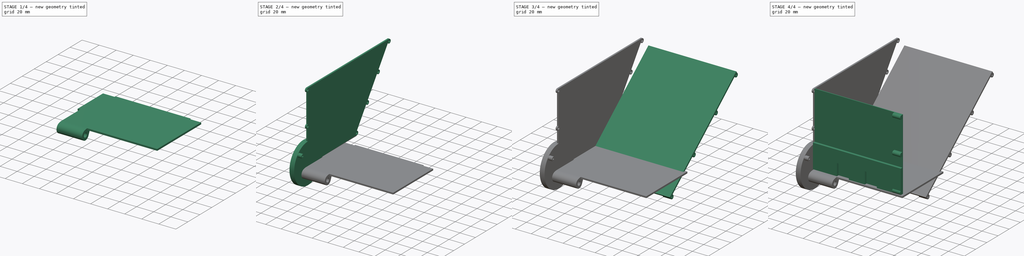
[diagram: build sequence overview — one tinted view per stage of 4, left to right]
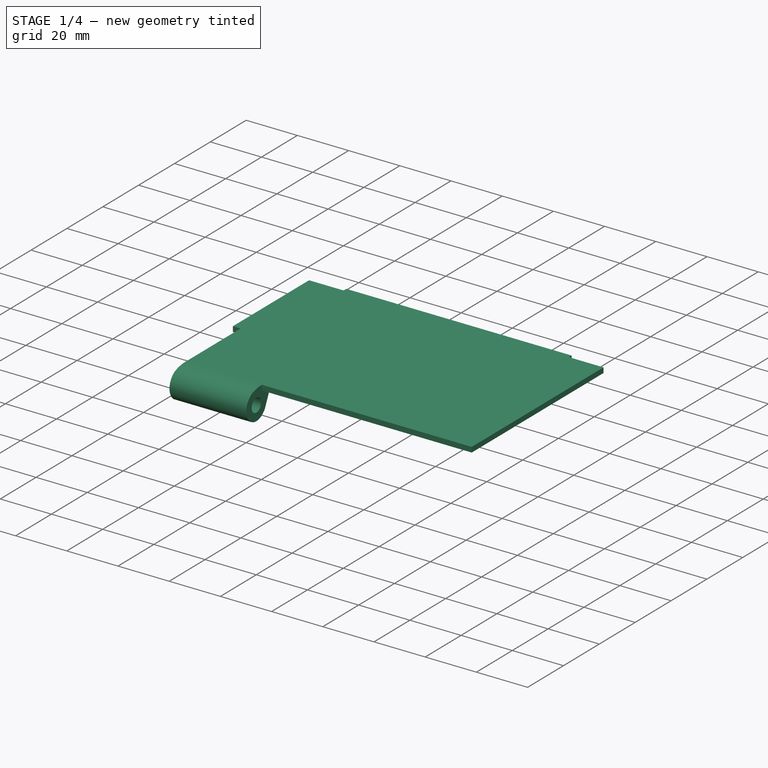
[diagram: stage 1 of 4 — iso view after this stage's code; geometry added in this stage tinted green]
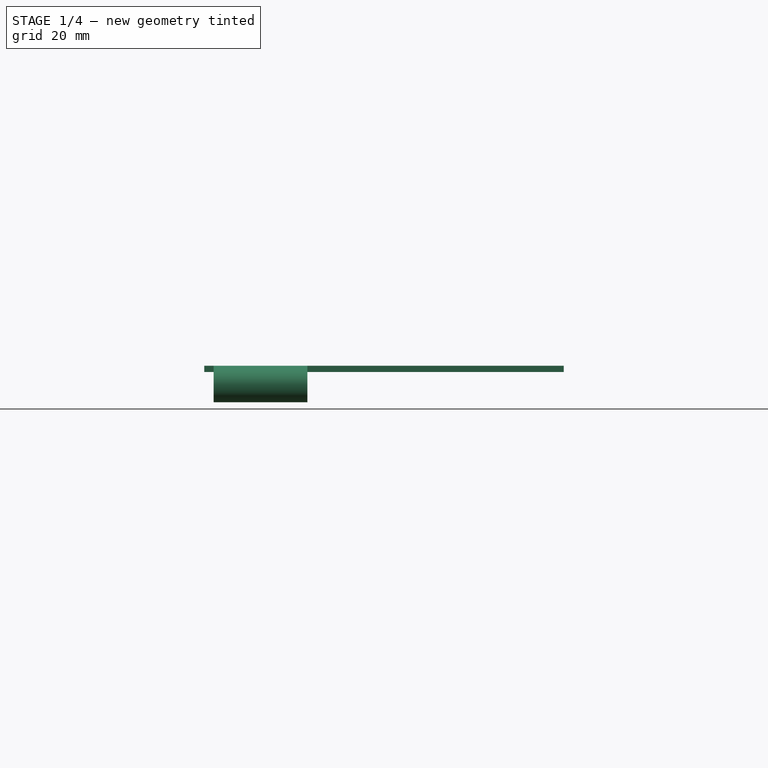
[diagram: stage 1 of 4 — front view after this stage's code; geometry added in this stage tinted green]
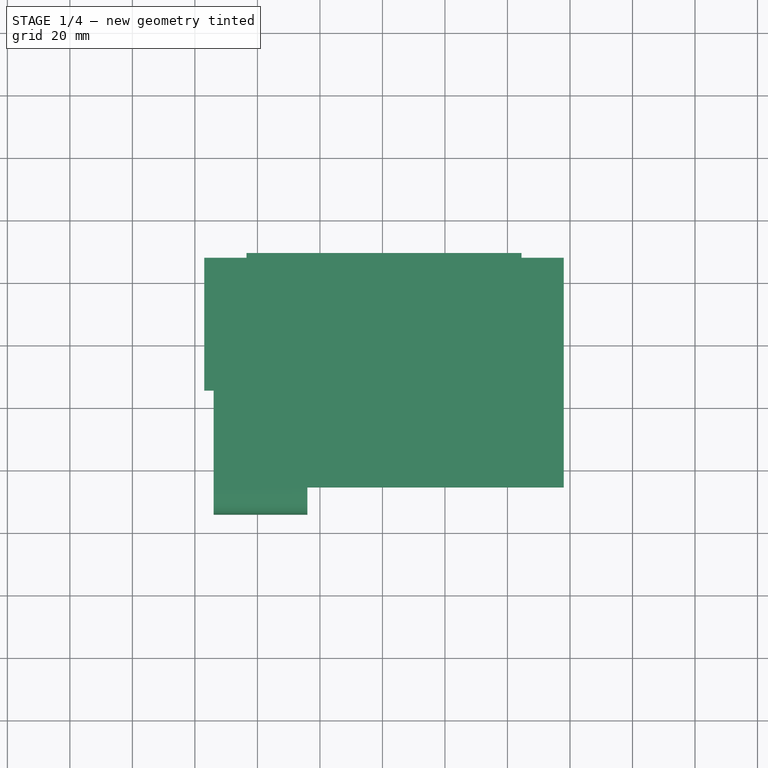
[diagram: stage 1 of 4 — top view after this stage's code; geometry added in this stage tinted green]
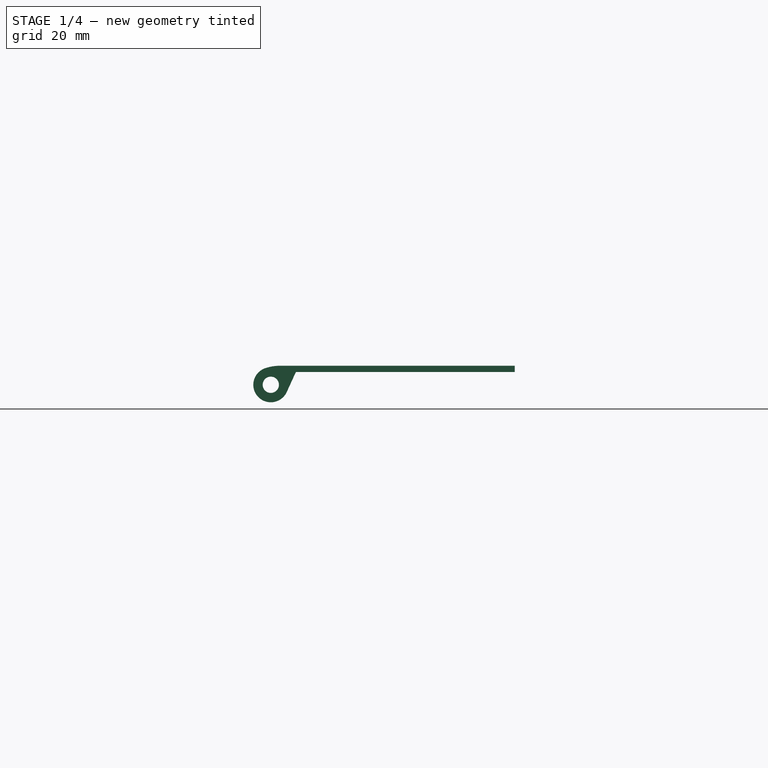
[diagram: stage 1 of 4 — right view after this stage's code; geometry added in this stage tinted green]
FCSTD DOCUMENT  (FreeCAD 0.18.4R)
Label: bunkerV3
License: All rights reserved
LicenseURL: http://en.wikipedia.org/wiki/All_rights_reserved
objects: Sketcher::SketchObject×18, PartDesign::Pad×12, PartDesign::Body×5, PartDesign::ShapeBinder×5, PartDesign::Pocket×3, PartDesign::Plane×3, PartDesign::Mirrored×2, PartDesign::Line×2, Spreadsheet::Sheet×1, PartDesign::FeatureBase×1, PartDesign::Revolution×1, App::Part×1
note: 68 computed .brp shape members not serialized (recipe doc carries the construction recipe); baked Part::Feature solids carry a one-line shape summary decoded from their .brp

FEATURE [PartDesign::Body] Body005  label="Unnamed"
FEATURE [PartDesign::ShapeBinder] CopyPad004001  label="Unnamed"
  TraceSupport = false
FEATURE [Sketcher::SketchObject] Sketch008  label="Sketch011"
  ExternalGeometry = -> [Mirrored001]
  MapMode = 5
  Placement = pos=(-55,-3.6e-15,-45) rot=(-0.707107,0.707107,0;3.14159rad)
  Support = -> [CopyPad004001]
  sketch-geometry (5):
    g0: LineSegment StartX=88.1546 StartY=-36.5099 StartZ=0 EndX=88.1546 EndY=-28.5099 EndZ=0
    g1: LineSegment StartX=102.155 StartY=-44.5099 StartZ=0 EndX=102.155 EndY=-36.5099 EndZ=0
    g2: LineSegment StartX=-69.5 StartY=-99.5 StartZ=0 EndX=-68 EndY=-99.5 EndZ=0
    g3: LineSegment StartX=-68 StartY=-113 StartZ=0 EndX=5.5 EndY=-113 EndZ=0
    g4: LineSegment StartX=5.5 StartY=-21 StartZ=0 EndX=5.5 EndY=-1 EndZ=0
  constraints (12):
    c: Horizontal(g0)
    c: Vertical(g1)
    c: Coincident(g2,g0)
    c: Coincident(g2,g1)
    c: Coincident(g3,g4)
    c: Horizontal(g4)
    c: Vertical(g3)
    c: Distance(g3) = 8
    c: Distance(g4) = 14
    c: Distance(g4,g1) = 8
    c: Coincident(g0,g3)
    c: Coincident(g1,g4)
FEATURE [PartDesign::Body] Body002  label="Back"
  Group = -> [DatumPlane002,CopyPad004,Sketch006,ShapeBinder,Pad005,Sketch007,Pad006,Mirrored001,Sketch008]
  Origin = -> Origin003
  Tip = -> Mirrored001
FEATURE [Sketcher::SketchObject] Sketch011  label="Unnamed"
FEATURE [PartDesign::Pad] Pad008
  Length = 2
  Length2 = 100
  Placement = pos=(-55,0,0) rot=(0.707107,0,-0.707107;3.14159rad)
  Profile = -> Sketch011
  Type = 0
FEATURE [PartDesign::ShapeBinder] ShapeBinder001
  Placement = pos=(-55,0,0) rot=(0.707107,0,-0.707107;3.14159rad)
  Support = -> [Pad004]
  TraceSupport = false
FEATURE [Sketcher::SketchObject] Sketch015
  ExternalGeometry = -> [Pad008]
  MapMode = 5
  Placement = pos=(-54,0,0) rot=(0.707107,0,-0.707107;3.14159rad)
  constraints (11):
    c: Coincident(g2,g0)
    c: Coincident(g2,g1)
    c: Tangent(g1,g2)
    c: PointOnObject(g3,g2)
    c: Perpendicular(g2,g3)
    c: Distance(g3) = 3
    c: Coincident(g4,g2)
    c: Tangent(g4,g2)
    c: Coincident(g5,g4)
    c: Coincident(g6,g5)
    c: Coincident(g6,g1)
FEATURE [PartDesign::Pad] Pad009
  BaseFeature = -> Pad008
  Length = 30
  Length2 = 100
  Placement = pos=(-55,0,0) rot=(0.707107,0,-0.707107;3.14159rad)
  Profile = -> Sketch015
  Reversed = true
  Type = 0
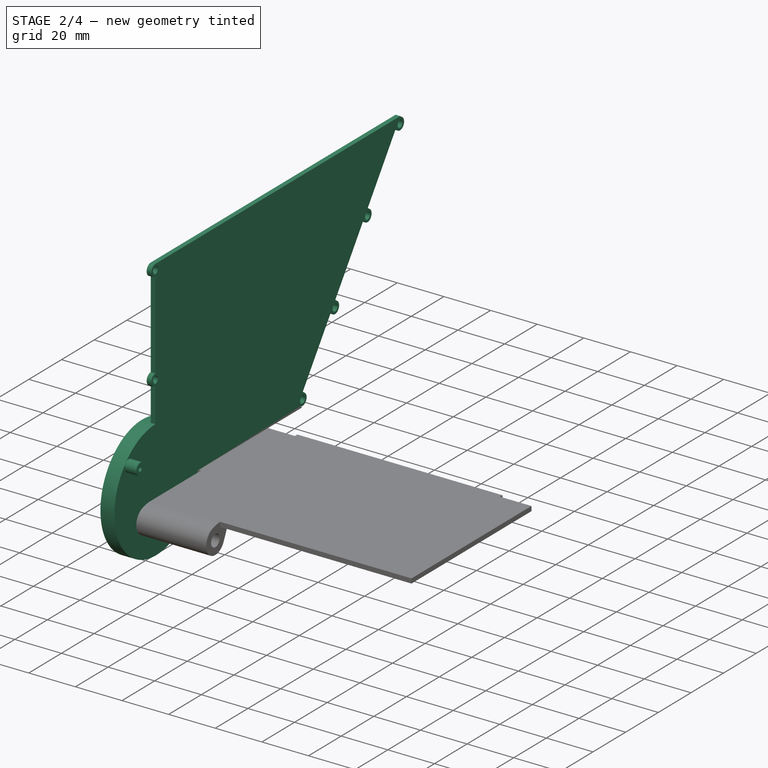
[diagram: stage 2 of 4 — iso view after this stage's code; geometry added in this stage tinted green]
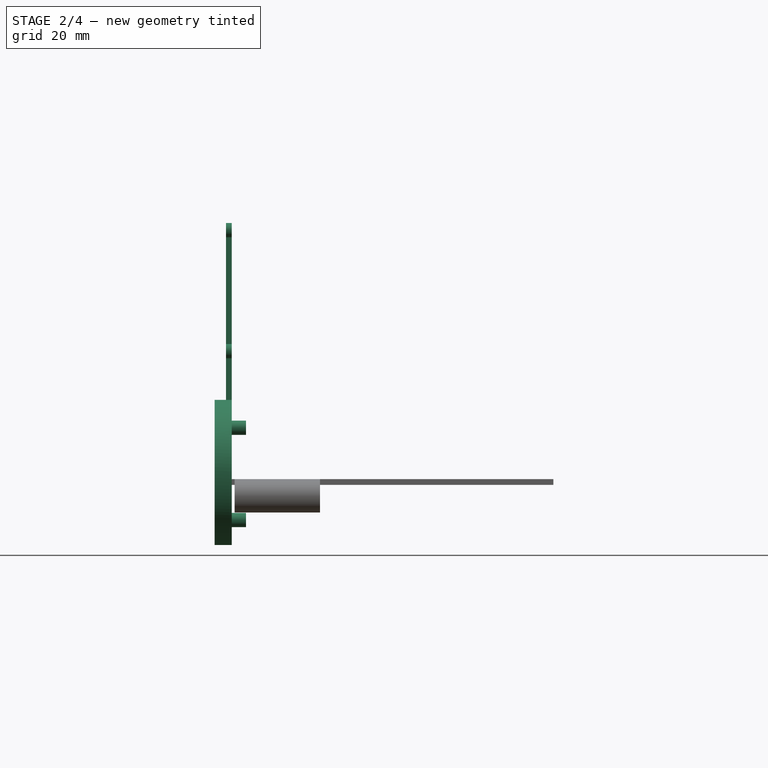
[diagram: stage 2 of 4 — front view after this stage's code; geometry added in this stage tinted green]
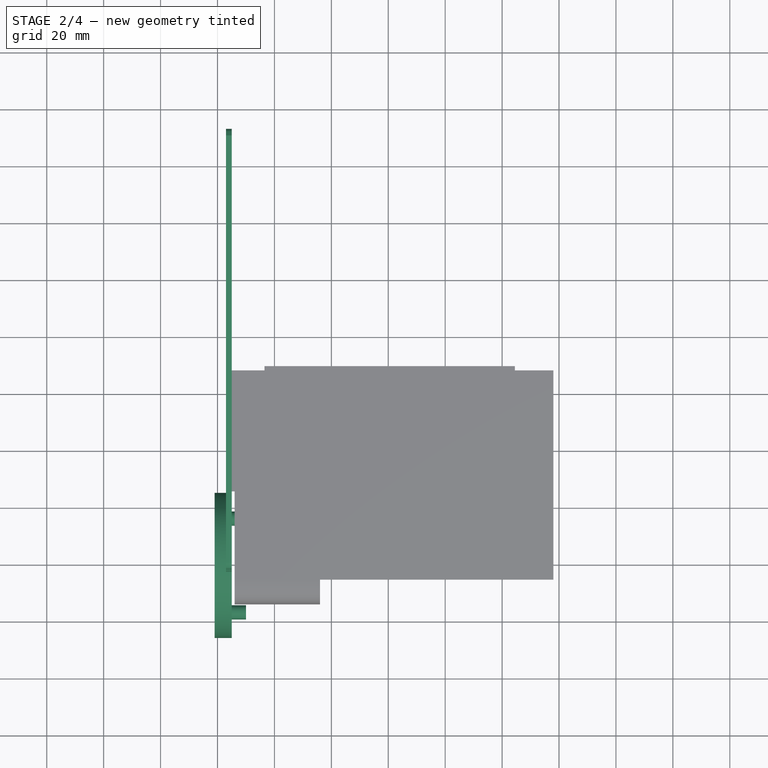
[diagram: stage 2 of 4 — top view after this stage's code; geometry added in this stage tinted green]
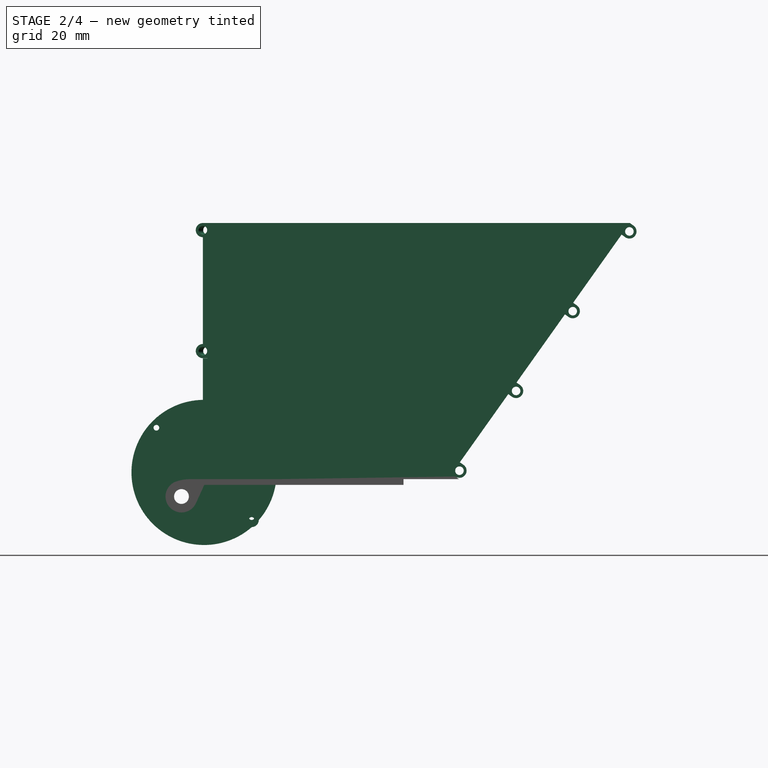
[diagram: stage 2 of 4 — right view after this stage's code; geometry added in this stage tinted green]
FEATURE [PartDesign::Pocket] Pocket  label="Unnamed"
  Length = 100
  Length2 = 100
  Type = 0
FEATURE [PartDesign::Plane] DatumPlane  label="Unnamed"
  Length = 24
  ResizeMode = 0
  Width = 24
FEATURE [PartDesign::Mirrored] Mirrored  label="Unnamed"
FEATURE [PartDesign::Plane] DatumPlane001  label="Unnamed"
  Length = 73.7938
  ResizeMode = 0
  Width = 27.2938
FEATURE [Sketcher::SketchObject] Sketch003  label="Sketch004"
  ExternalGeometry = -> [Pad002]
  MapMode = 5
  Support = -> [DatumPlane001]
  expr: Constraints[5] = <<D>>.fixture_hole_end_diameter
  constraints (6):
    c: Coincident(g0,g-5)
    c: Coincident(g1,g-4)
    c: Coincident(g2,g-3)
    c: Equal(g2,g1)
    c: Equal(g1,g0)
    c: Diameter(g2) = 2
FEATURE [PartDesign::Body] Body  label="Front"
  Group = -> [Sketch,Pad,Sketch001,Pad001,Sketch002,Pad002,Sketch003,Pocket,DatumPlane,Mirrored]
  Origin = -> Origin001
  Tip = -> Mirrored
FEATURE [PartDesign::ShapeBinder] CopyMirrored  label="Unnamed"
  TraceSupport = false
FEATURE [Sketcher::SketchObject] Sketch004  label="Unnamed"
FEATURE [PartDesign::Pad] Pad003
  Length = 2
  Length2 = 100
  Placement = pos=(-55,0,0) rot=(0.707107,0,-0.707107;3.14159rad)
  Profile = -> Sketch004
  Type = 0
FEATURE [Sketcher::SketchObject] Sketch005
  MapMode = 5
  Placement = pos=(-57,-3e-16,-3e-16) rot=(0.707107,0,-0.707107;3.14159rad)
  Support = -> [Pad003]
  expr: Constraints[16] = Sketch004.Constraints[19]
  expr: Constraints[75] = 5
  expr: Constraints[17] = Sketch004.Constraints[20]
  expr: Constraints[74] = 3.5
  expr: Constraints[3] = Sketch004.Constraints[4]
  expr: Constraints[2] = Sketch004.Constraints[3]
  expr: Constraints[77] = Sketch004.Constraints[81]
  expr: Constraints[61] = Sketch004.Constraints[63]
  expr: Constraints[19] = Sketch004.Constraints[21]
  expr: Constraints[79] = Sketch004.Constraints[84]
  expr: Constraints[28] = Sketch004.Constraints[30]
  expr: Constraints[30] = Sketch004.Constraints[32]
  expr: Constraints[64] = Sketch004.Constraints[67]
  expr: Constraints[18] = Sketch004.Constraints[21]
  constraints (89):
    c: Horizontal(g0)
    c: Vertical(g1)
    c: DistanceY(g-1,g1) = 1
    c: Distance(g1,g2) = 90
    c: PointOnObject(g2,g-2)
    c: Horizontal(g2)
    c: Coincident(g3,g2)
    c: Coincident(g3,g1)
    c: Equal(g2,g3)
    c: Coincident(g5,g4)
    c: Coincident(g6,g5)
    c: Vertical(g6)
    c: Coincident(g7,g5)
    c: Vertical(g7)
    c: Tangent(g7,g5)
    c: Tangent(g6,g5)
    c: Diameter(g5) = 5
    c: Diameter(g4) = 3
    c: Distance(g4,g0) = 5.2
    c: Diameter(g8) = 5.2
    c: Coincident(g11,g8)
    c: Coincident(g12,g11)
    c: Coincident(g12,g10)
    c: Coincident(g13,g11)
    c: Coincident(g13,g9)
    c: Equal(g12,g13)
    c: Parallel(g12,g13)
    c: Perpendicular(g12,g11)
    c: Distance(g12) = 22.95
    c: Coincident(g14,g11)
    c: Distance(g11) = 11.6
    c: Coincident(g16,g15)
    c: Coincident(g17,g16)
    c: Vertical(g17)
    c: Coincident(g18,g16)
    c: Vertical(g18)
    c: Tangent(g18,g16)
    c: Equal(g5,g16) = 5
    c: Equal(g4,g15) = 3
    c: Coincident(g20,g19)
    c: Coincident(g21,g20)
    c: Vertical(g21)
    c: Coincident(g22,g20)
    c: Vertical(g22)
    c: Tangent(g22,g20)
    c: Tangent(g21,g20)
    c: Equal(g5,g20) = 5
    c: Equal(g4,g19) = 3
    c: PointOnObject(g18,g0)
    c: PointOnObject(g21,g0)
    c: Coincident(g22,g1)
    c: Horizontal(g19,g15)
    c: Horizontal(g15,g4)
    c: Coincident(g0,g7)
    c: Coincident(g0,g17)
    c: Tangent(g0,g23)
    c: PointOnObject(g23,g18)
    c: PointOnObject(g23,g21)
    c: Equal(g23,g0)
    c: Horizontal(g0,g2)
    c: Horizontal(g3)
    c: Distance(g1) = 90
    c: Coincident(g24,g1)
    c: Vertical(g24)
    c: Distance(g24) = 3
    c: Coincident(g25,g24)
    c: PointOnObject(g25,g8)
    c: Perpendicular(g8,g25)
    c: Coincident(g26,g24)
    c: Vertical(g26)
    c: PointOnObject(g27,g26)
    c: PointOnObject(g27,g8)
    c: Horizontal(g27)
    c: Perpendicular(g8,g27)
    c: Distance(g27) = 3.5
    c: Distance(g25) = 5
    c: Diameter(g14) = 51
    c: Diameter(g10) = 2
    c: Equal(g10,g9)
    c: Distance(g26) = 3
    c: Horizontal(g28)
    c: Distance(g28,g3) = 3
    c: Coincident(g29,g10)
    c: PointOnObject(g29,g28)
    c: Vertical(g29)
    c: Coincident(g30,g9)
    c: PointOnObject(g30,g1)
    c: Horizontal(g30)
    c: Equal(g30,g29)
FEATURE [PartDesign::Pad] Pad004
  BaseFeature = -> Pad003
  Length = 4
  Length2 = 2
  Placement = pos=(-55,0,0) rot=(0.707107,0,-0.707107;3.14159rad)
  Profile = -> Sketch005
  Type = 4
FEATURE [PartDesign::Pocket] Pocket003  label="Unnamed"
  Length = 100
  Length2 = 100
  Type = 0
FEATURE [Sketcher::SketchObject] Sketch016  label="Sketch017"
  MapMode = 5
  Placement = pos=(-55,0,0) rot=(0,1,0;1.5708rad)
  Support = -> [Pocket003]
  sketch-geometry (4):
    g0: LineSegment StartX=182.35 StartY=1.5 StartZ=0 EndX=182.35 EndY=30.5143 EndZ=0
    g1: LineSegment StartX=-29.8571 StartY=30.5143 StartZ=0 EndX=-29.8571 EndY=1.5 EndZ=0
    g2: Circle CenterX=59.3381 CenterY=16.1421 CenterZ=0 NormalX=0 NormalY=0 NormalZ=1 AngleXU=0 Radius=2.5
    g3: Circle CenterX=26.9394 CenterY=-17.3381 CenterZ=0 NormalX=0 NormalY=0 NormalZ=1 AngleXU=0 Radius=2.5
  constraints (9):
    c: Coincident(g0,g1)
    c: Coincident(g1,g2)
    c: Coincident(g2,g3)
    c: Coincident(g3,g0)
    c: Horizontal(g0)
    c: Horizontal(g2)
    c: Vertical(g1)
    c: Vertical(g3)
    c: Distance(g0,g-1) = 1.5
FEATURE [Sketcher::SketchObject] Sketch017  label="Unnamed"
FEATURE [PartDesign::Pad] Pad010
  BaseFeature = -> Pocket003
  Length = 5
  Length2 = 100
  Placement = pos=(-55,0,0) rot=(0.707107,0,-0.707107;3.14159rad)
  Profile = -> Sketch017
  Type = 0
FEATURE [PartDesign::Pocket] Pocket004  label="Unnamed"
  Length = 100
  Length2 = 100
  Type = 0
FEATURE [Sketcher::SketchObject] Sketch019  label="Unnamed"
FEATURE [PartDesign::Pad] Pad011  label="Unnamed"
  Length = 100
  Length2 = 100
  Type = 0
FEATURE [Sketcher::SketchObject] Sketch018  label="Sketch021"
  ExternalGeometry = -> [Pad009]
  MapMode = 5
  Placement = pos=(-55,-4.68e-14,-37) rot=(0,0,1;1.5708rad)
  Support = -> [Pad011]
  sketch-geometry (8):
    g0: LineSegment StartX=51.1 StartY=8.53321 StartZ=0 EndX=59.8678 EndY=-11.8476 EndZ=0
    g1: ArcOfCircle CenterX=51.1 CenterY=8.53321 CenterZ=0 NormalX=0 NormalY=0 NormalZ=1 AngleXU=0 Radius=27.4423 StartAngle=4.56242 EndAngle=5.11535
    g2: ArcOfCircle CenterX=51.1 CenterY=8.53321 CenterZ=0 NormalX=0 NormalY=0 NormalZ=1 AngleXU=0 Radius=27.4423 StartAngle=4.48823 EndAngle=4.56242
    g3: LineSegment StartX=47 StartY=-13.2714 StartZ=0 EndX=47 EndY=-18.6011 EndZ=0
    g4: LineSegment StartX=45 StartY=-59.7924 StartZ=0 EndX=45 EndY=-29.7924 EndZ=0
    g5: LineSegment StartX=37 StartY=-29.7924 StartZ=0 EndX=37 EndY=-59.7924 EndZ=0
    g6: LineSegment StartX=63.0705 StartY=8.5 StartZ=0 EndX=60.7611 EndY=12.5 EndZ=0
    g7: LineSegment StartX=56.1423 StartY=12.5 StartZ=0 EndX=53.8329 EndY=8.5 EndZ=0
  constraints (18):
    c: Coincident(g0,g-3)
    c: Coincident(g1,g0)
    c: Coincident(g2,g0)
    c: Coincident(g2,g1)
    c: Coincident(g3,g0)
    c: Coincident(g3,g0)
    c: PointOnObject(g2,g-4)
    c: PointOnObject(g3,g-4)
    c: Coincident(g4,g0)
    c: Coincident(g4,g2)
    c: PointOnObject(g4,g-5)
    c: Coincident(g5,g4)
    c: Coincident(g5,g3)
    c: PointOnObject(g5,g-5)
    c: Coincident(g6,g4)
    c: Coincident(g6,g5)
    c: Coincident(g7,g4)
    c: Coincident(g7,g5)
FEATURE [Sketcher::SketchObject] Sketch021  label="Unnamed"
FEATURE [PartDesign::Line] DatumLine
  AttacherType = Attacher::AttachEngineLine
  MapMode = 19
  Placement = pos=(-56.5,0.6,3.1e-15) rot=(0,1,0;1.5708rad)
  Support = -> [Pad011]
FEATURE [Sketcher::SketchObject] Sketch022  label="Unnamed"
FEATURE [PartDesign::Line] DatumLine001  label="Unnamed"
  AttacherType = Attacher::AttachEngineLine
FEATURE [PartDesign::Revolution] Revolution  label="Unnamed"
  Angle = 360
  Axis = (0,1,0)
  Base = (0,0,0)
FEATURE [Sketcher::SketchObject] Sketch023  label="Unnamed"
FEATURE [PartDesign::Pad] Pad012  label="Unnamed"
  Length = 100
  Length2 = 100
  Type = 0
FEATURE [PartDesign::Body] Body001  label="Right"
  Group = -> [DatumPlane001,CopyMirrored,Sketch004,Pad003,Sketch005,Pad004,Sketch016,Pocket003,Sketch017,Pad010,Sketch019,Pad011,Sketch021,DatumLine,Sketch022,DatumLine001,Revolution,Sketch023,Pad012]
  Origin = -> Origin002
  Tip = -> Pad012
FEATURE [App::Part] Part  label="bunker"
  Group = -> [Body,Body001,Body002,Spreadsheet,Body004,Body005]
  Origin = -> Origin
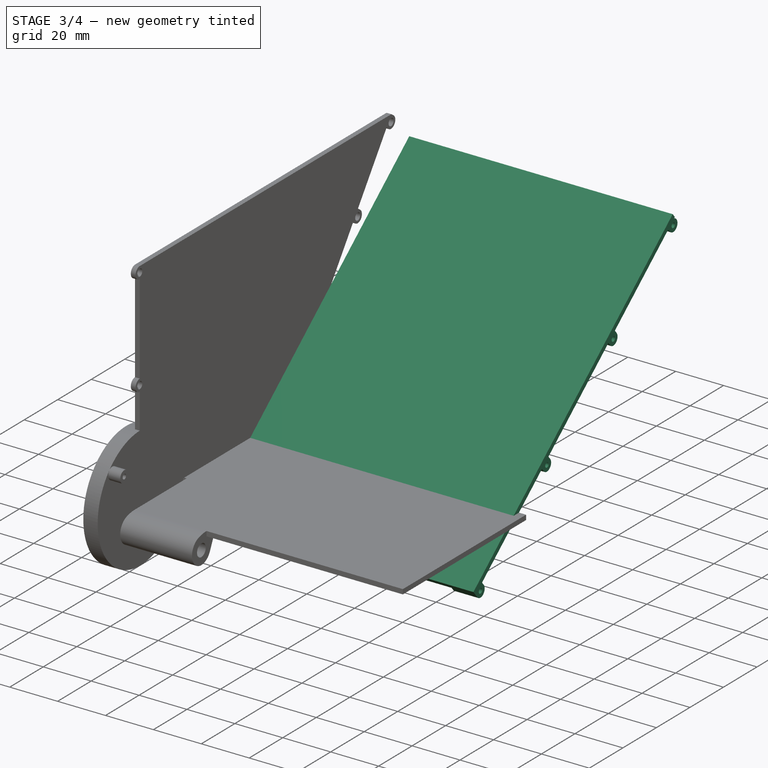
[diagram: stage 3 of 4 — iso view after this stage's code; geometry added in this stage tinted green]
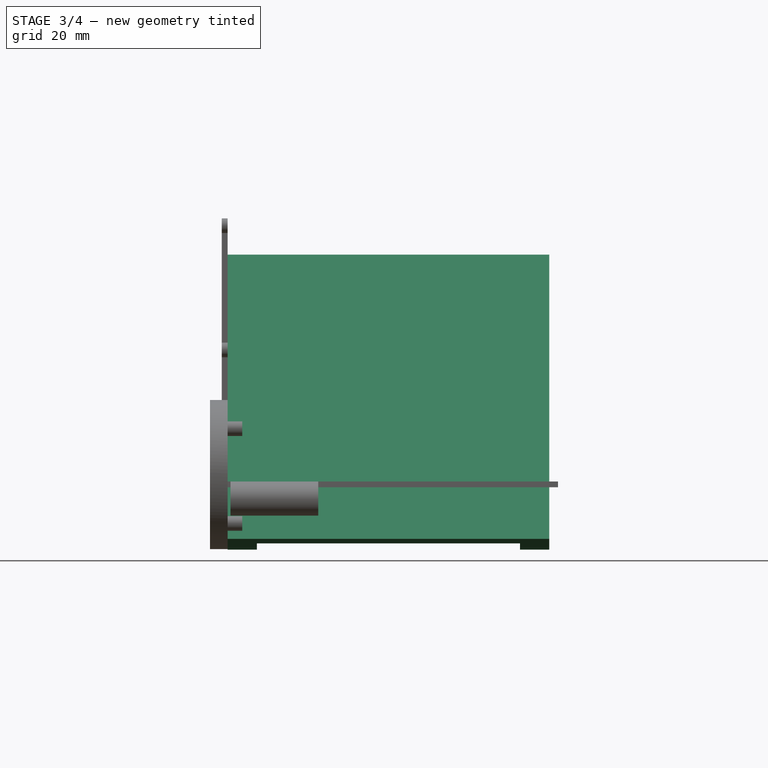
[diagram: stage 3 of 4 — front view after this stage's code; geometry added in this stage tinted green]
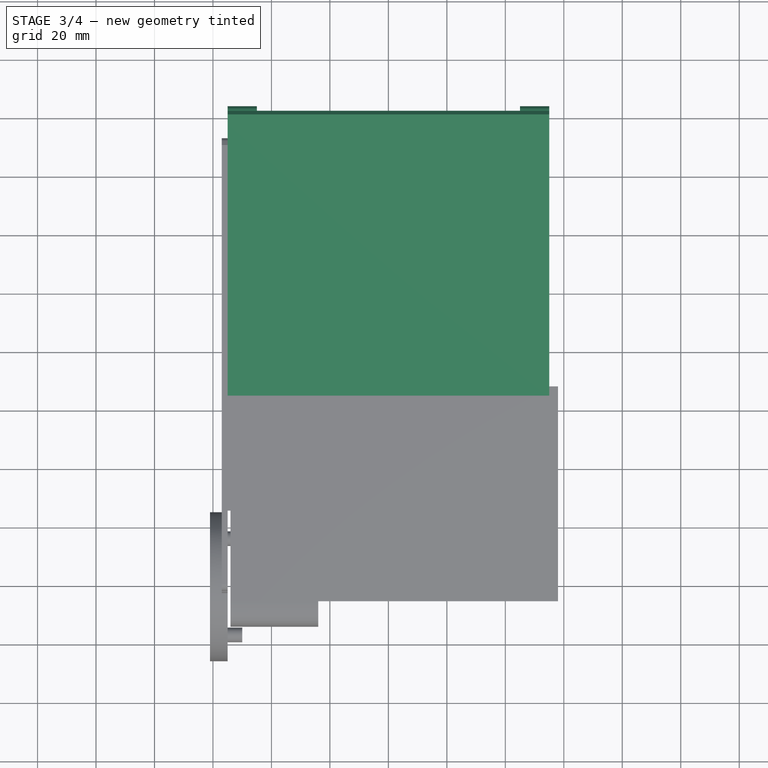
[diagram: stage 3 of 4 — top view after this stage's code; geometry added in this stage tinted green]
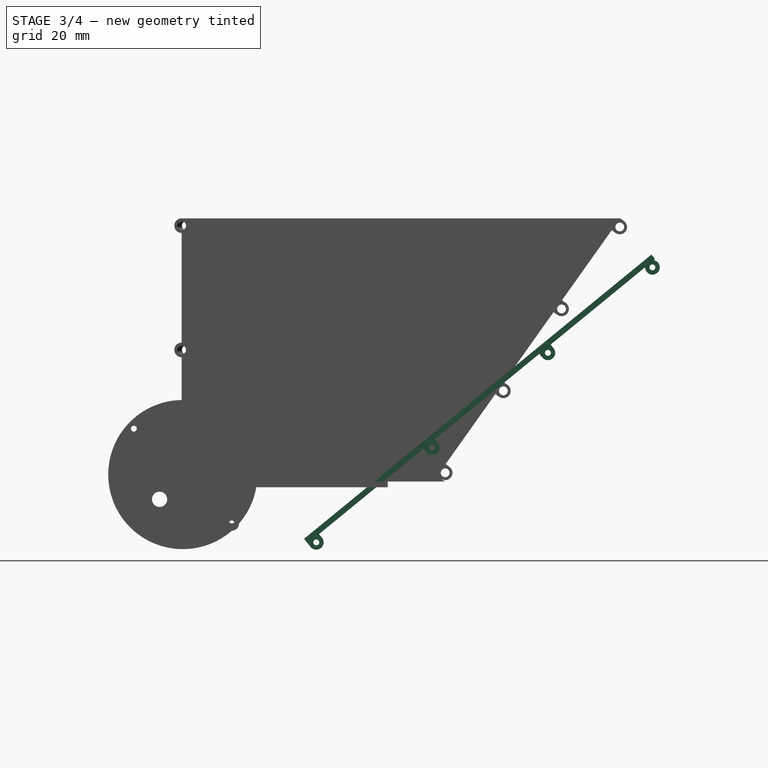
[diagram: stage 3 of 4 — right view after this stage's code; geometry added in this stage tinted green]
FEATURE [PartDesign::FeatureBase] Clone
  BaseFeature = -> Pad003
  Placement = pos=(-55,0,0) rot=(0.707107,0,-0.707107;3.14159rad)
FEATURE [PartDesign::Body] Body004  label="Left"
  BaseFeature = -> Pad003
  Group = -> [Clone]
  Origin = -> Origin005
  Placement = pos=(111,0,0) rot=(0,0,1;0rad)
  Tip = -> Clone
FEATURE [PartDesign::ShapeBinder] CopyPad004
  Placement = pos=(-55,0,0) rot=(0.707107,0,-0.707107;3.14159rad)
  TraceSupport = false
FEATURE [PartDesign::Plane] DatumPlane002
  Length = 228.716
  MapMode = 5
  Placement = pos=(-55,49.3218,-60.2822) rot=(0.685604,-0.685604,-0.244735;3.62163rad)
  ResizeMode = 0
  Support = -> [CopyPad004]
  Width = 141.848
FEATURE [PartDesign::ShapeBinder] ShapeBinder  label="Unnamed"
  TraceSupport = false
FEATURE [PartDesign::Pad] Pad005  label="Unnamed"
  Length = 100
  Length2 = 100
  Type = 0
FEATURE [Sketcher::SketchObject] Sketch006  label="Sketch007"
  MapMode = 5
  Placement = pos=(-55,49.3218,-60.2822) rot=(-0.393654,-0.830706,0.393654;1.75522rad)
  Support = -> [Pad005]
FEATURE [Sketcher::SketchObject] Sketch007  label="Unnamed"
FEATURE [PartDesign::Pad] Pad006
  BaseFeature = -> Pad005
  Length = 10
  Length2 = 100
  Placement = pos=(-55,49.3218,-60.2822) rot=(0.685604,-0.685604,-0.244735;3.62163rad)
  Profile = -> Sketch007
  Reversed = true
  Type = 0
FEATURE [PartDesign::Mirrored] Mirrored001
  BaseFeature = -> Pad006
  MirrorPlane = -> YZ_Plane003
  Originals = -> [Pad006]
  Placement = pos=(-55,49.3218,-60.2822) rot=(0.685604,-0.685604,-0.244735;3.62163rad)
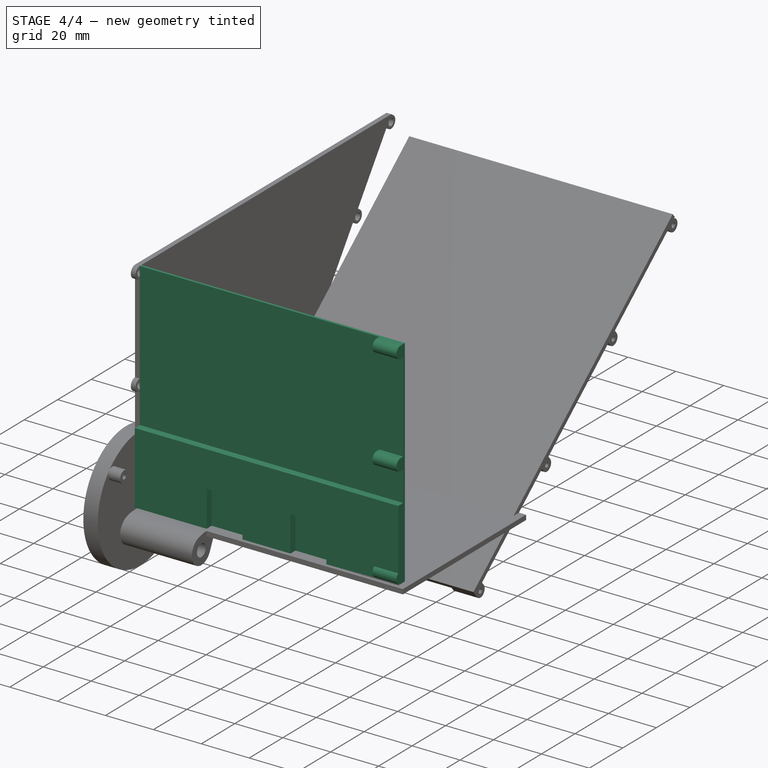
[diagram: stage 4 of 4 — iso view after this stage's code; geometry added in this stage tinted green]
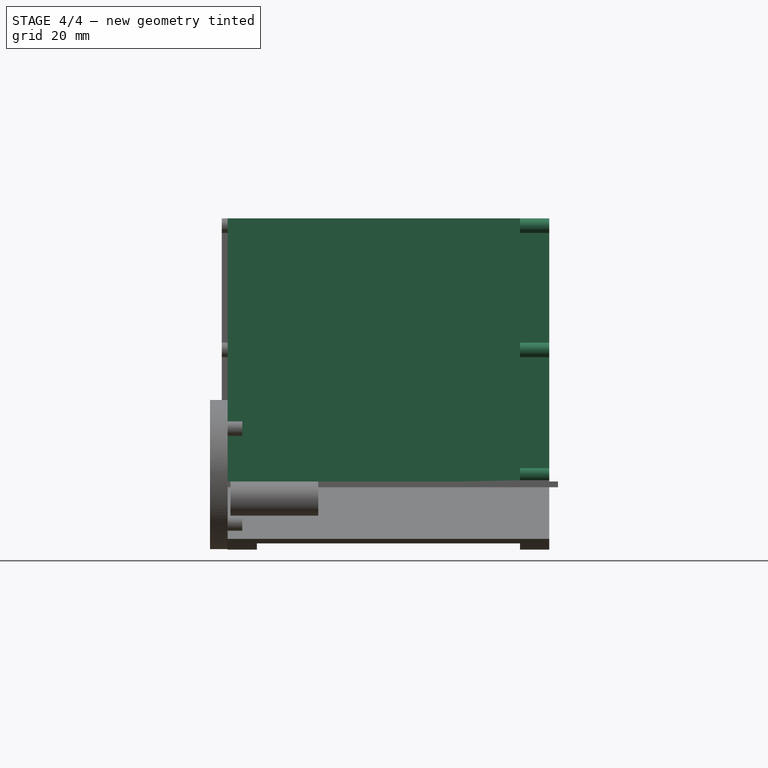
[diagram: stage 4 of 4 — front view after this stage's code; geometry added in this stage tinted green]
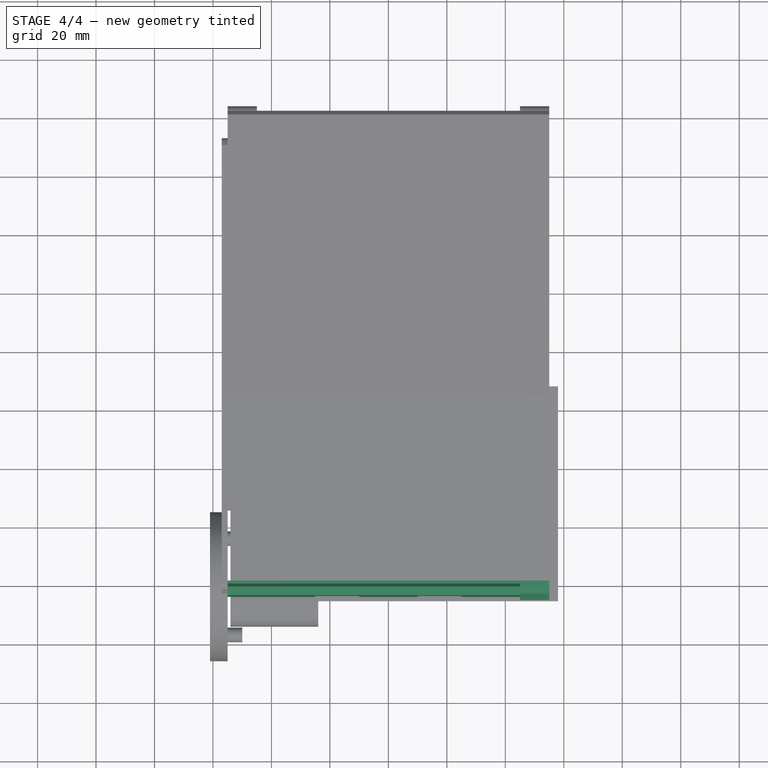
[diagram: stage 4 of 4 — top view after this stage's code; geometry added in this stage tinted green]
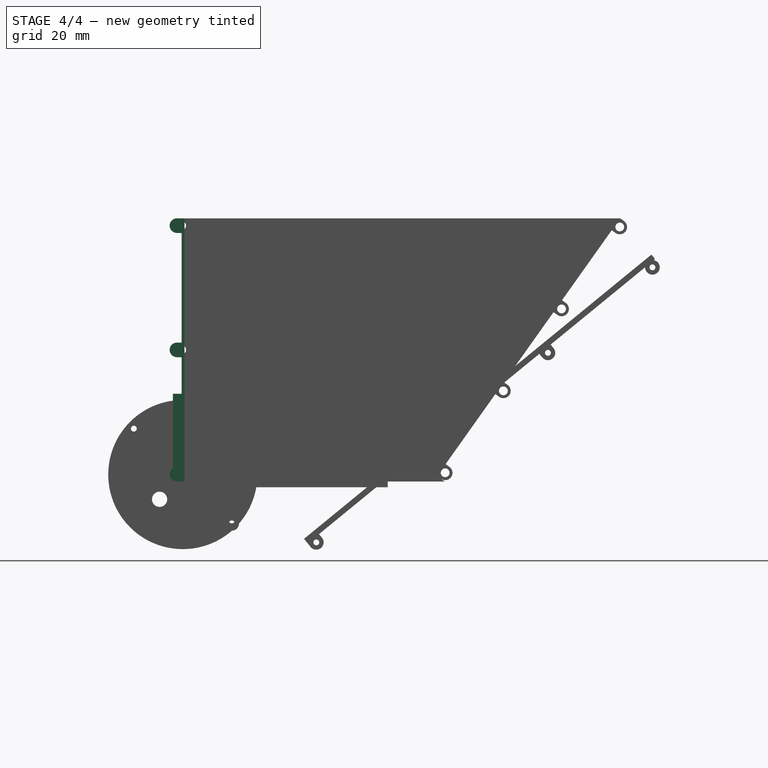
[diagram: stage 4 of 4 — right view after this stage's code; geometry added in this stage tinted green]
FEATURE [Spreadsheet::Sheet] Spreadsheet  label="D"
  cells = A1=width; B1(width)=110; E1=orifice length; F1(orifice_length)=90; A2=height; B2(height)=90; A3=thickness; B3(thickness)=1; A4=fixture hole front diameter; B4(fixture_hole_front_diameter)=3; C4=fixture hole end diameter; D4(fixture_hole_end_diameter)=2; A5=fixture outside diameter; B5(fixture_outside_diameter)==fixture_hole_front_diameter + 2; A6=fixturehole center offset; B6(fixture_hole_center_offset)==fixture_hole_front_diameter / 2 + 0.1; A7=length; B7(length)=150
FEATURE [PartDesign::Pad] Pad  label="Unnamed"
  Length = 100
  Length2 = 100
  Type = 0
FEATURE [Sketcher::SketchObject] Sketch  label="Sketch001"
  MapMode = 5
  Placement = pos=(0,-1,-2e-16) rot=(1,0,0;1.5708rad)
  Support = -> [Pad]
  expr: Constraints[14] = <<D>>.height
  expr: Constraints[15] = <<D>>.width
  sketch-geometry (6):
    g0: LineSegment StartX=55 StartY=45 StartZ=0 EndX=55 EndY=-45 EndZ=0
    g1: LineSegment StartX=-55 StartY=-45 StartZ=0 EndX=-55 EndY=45 EndZ=0
    g2: LineSegment StartX=55 StartY=45 StartZ=0 EndX=-55 EndY=-45 EndZ=0
    g3: LineSegment StartX=55 StartY=-45 StartZ=0 EndX=55 EndY=-15 EndZ=0
    g4: LineSegment StartX=-55 StartY=-15 StartZ=0 EndX=-55 EndY=-45 EndZ=0
    g5: LineSegment StartX=-10 StartY=-30 StartZ=0 EndX=-25 EndY=-30 EndZ=0
  constraints (16):
    c: Coincident(g0,g1)
    c: Coincident(g1,g2)
    c: Coincident(g2,g3)
    c: Coincident(g3,g0)
    c: Horizontal(g0)
    c: Horizontal(g2)
    c: Vertical(g1)
    c: Vertical(g3)
    c: Coincident(g4,g0)
    c: Coincident(g4,g1)
    c: Coincident(g5,g0)
    c: Coincident(g5,g2)
    c: PointOnObject(g-1,g5)
    c: PointOnObject(g-1,g4)
    c: Distance(g1) = 90
    c: Distance(g0) = 110
FEATURE [Sketcher::SketchObject] Sketch001  label="Unnamed"
FEATURE [PartDesign::Pad] Pad001
  BaseFeature = -> Pad
  Length = 3
  Length2 = 100
  Placement = pos=(0,0,0) rot=(1,0,0;1.5708rad)
  Profile = -> Sketch001
  Type = 0
FEATURE [Sketcher::SketchObject] Sketch002
  ExternalGeometry = -> [Pad001]
  MapMode = 5
  Placement = pos=(55,0,0) rot=(0.707107,0,0.707107;3.14159rad)
  Support = -> [Pad001]
  expr: Constraints[4] = <<D>>.fixture_outside_diameter
  expr: Constraints[23] = <<D>>.fixture_hole_center_offset
  constraints (36):
    c: Tangent(g0,g2) = 1.5708
    c: Coincident(g-3,g2)
    c: Vertical(g2)
    c: PointOnObject(g1,g-3)
    c: Diameter(g0) = 5
    c: Coincident(g3,g1)
    c: Coincident(g3,g2)
    c: Tangent(g4,g6) = 1.5708
    c: Tangent(g4,g5) = -1.5708
    c: Vertical(g5)
    c: Vertical(g6)
    c: Equal(g0,g4) = 5
    c: Coincident(g7,g5)
    c: Coincident(g7,g6)
    c: Tangent(g8,g10) = 1.5708
    c: Tangent(g8,g9) = -1.5708
    c: Vertical(g9)
    c: Vertical(g10)
    c: Equal(g0,g8) = 5
    c: Coincident(g11,g9)
    c: Coincident(g11,g10)
    c: Coincident(g0,g1)
    c: Tangent(g0,g1)
    c: DistanceY(g2,g0) = 1.6
    c: Vertical(g1)
    c: PointOnObject(g6,g-3)
    c: Horizontal(g0,g4)
    c: Horizontal(g7)
    c: Horizontal(g11)
    c: Horizontal(g8,g0)
    c: Coincident(g9,g-4)
    c: Coincident(g12,g8)
    c: Coincident(g12,g4)
    c: Coincident(g13,g4)
    c: Coincident(g13,g0)
    c: Equal(g13,g12)
FEATURE [PartDesign::Pad] Pad002
  BaseFeature = -> Pad001
  Length = 10
  Length2 = 100
  Placement = pos=(0,0,0) rot=(1,0,0;1.5708rad)
  Profile = -> Sketch002
  Reversed = true
  Type = 0
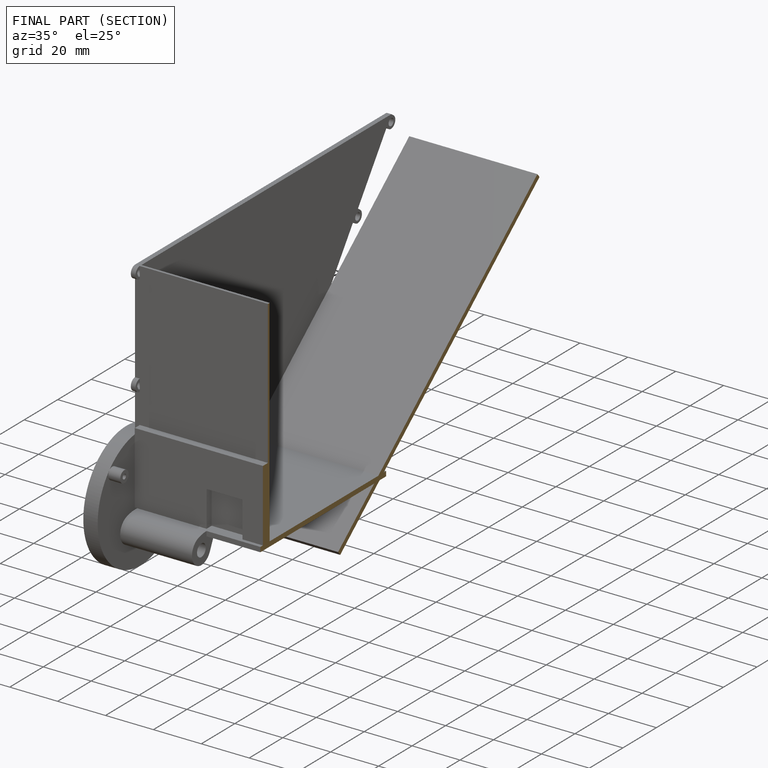
[diagram: finished part — half-section view (interior)]
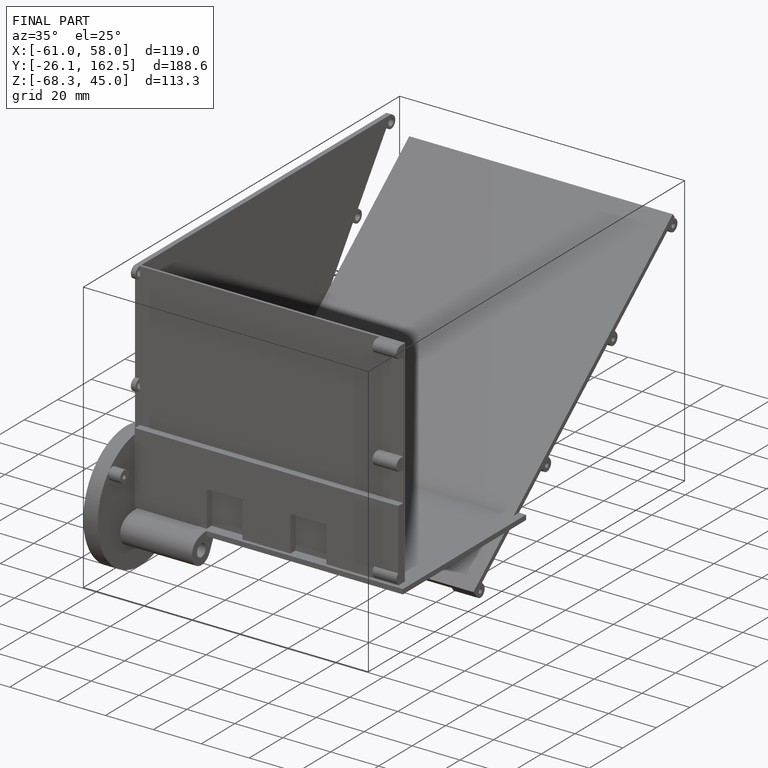
[diagram: finished part — iso view with bounding-box wireframe]
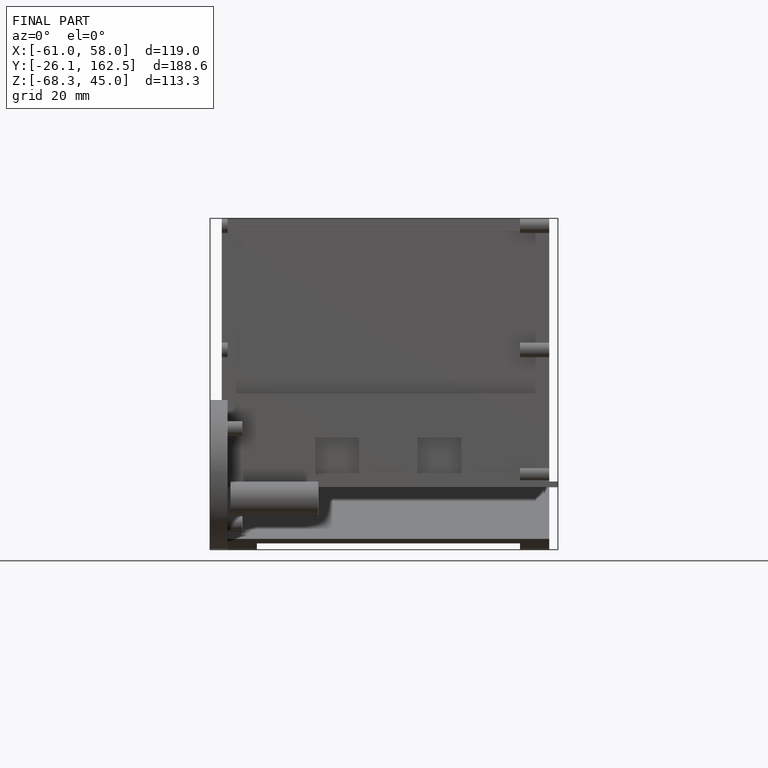
[diagram: finished part — front view with bounding-box wireframe]
